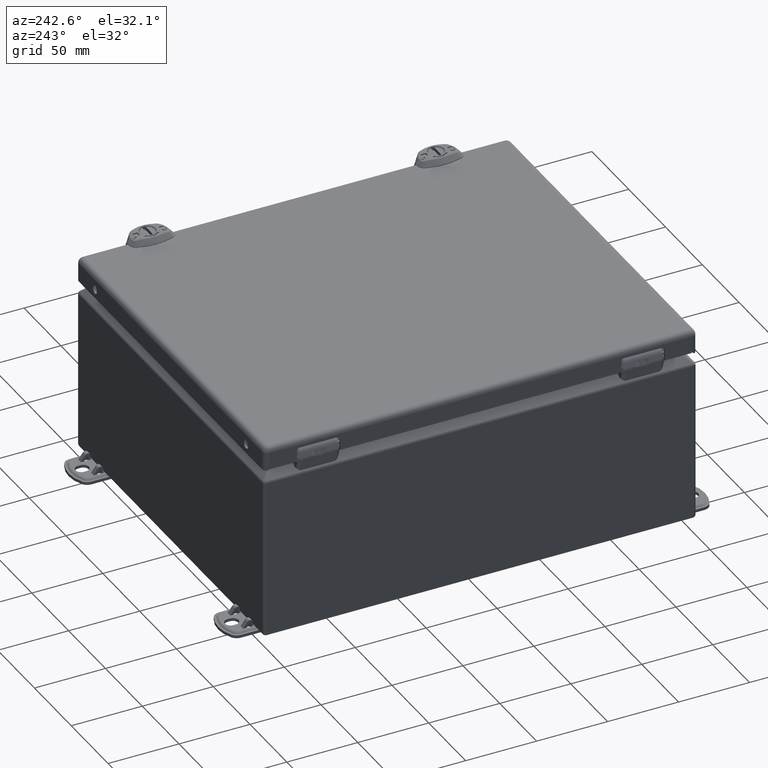
[diagram: clean part render]
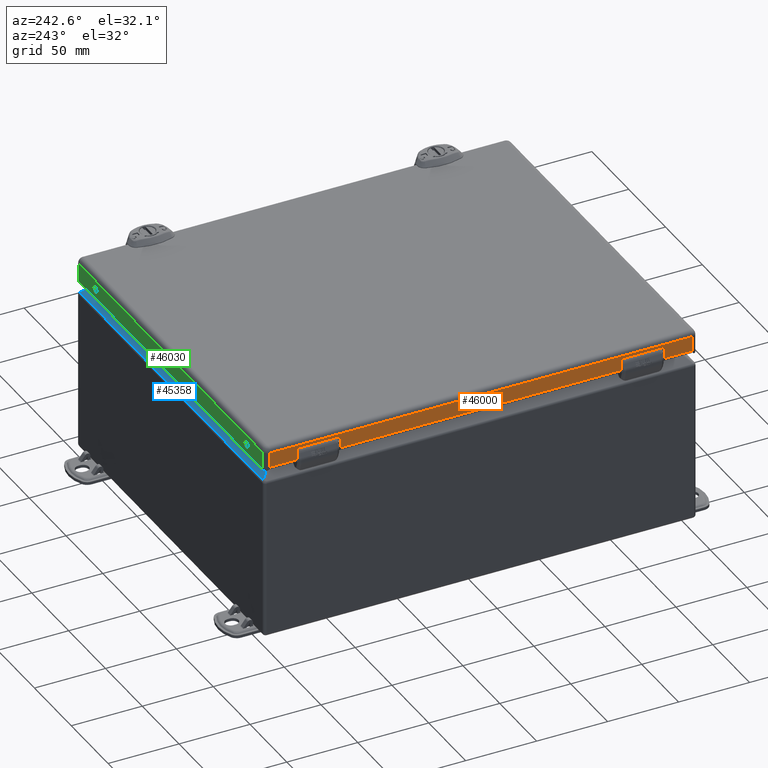
[diagram: same view with three faces highlighted in distinct colors, each labeled with its STEP entity id]
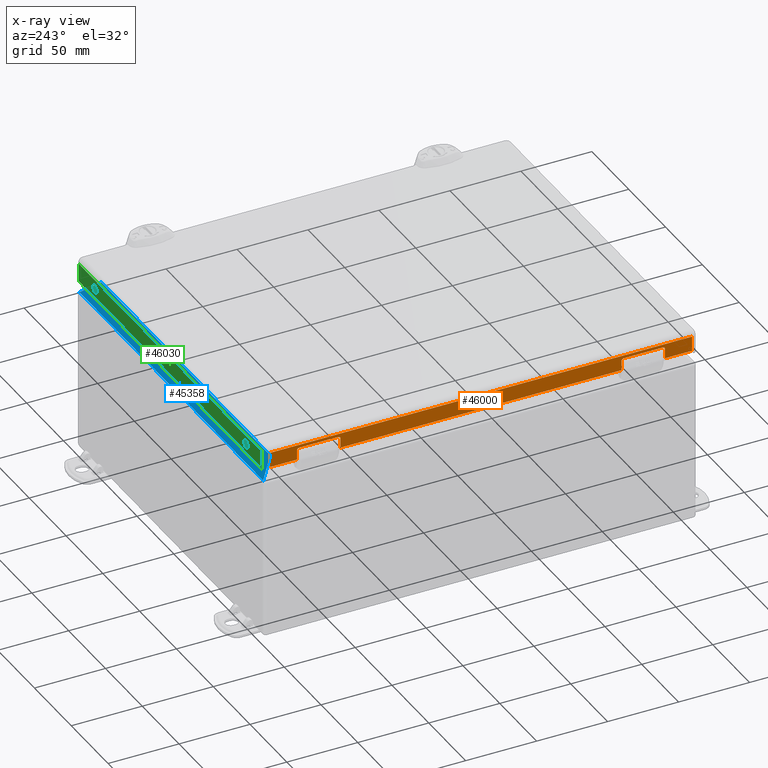
[diagram: x-ray of the same camera — body ghosted, the three highlighted faces saturated]
A machine part, auxiliary view with three faces highlighted in distinct colors.
The next image is the same camera in x-ray (body ghosted, the three faces saturated) — at least one of them is partly hidden behind the body in this view.
Their STEP definitions:

[orange] entity #46000 — the highlighted planar face has unit normal (-1, -0, -0).
#3345=PLANE('',#50018);
#4900=FACE_OUTER_BOUND('',#7737,.T.);
#7737=EDGE_LOOP('',(#34406,#34407,#34408,#34409,#34410,#34411,#34412,#34413,
#34414,#34415,#34416,#34417,#34418,#34419,#34420,#34421));
#10982=LINE('',#75236,#14840);
#10986=LINE('',#75248,#14844);
#10991=LINE('',#75265,#14849);
#11001=LINE('',#75290,#14859);
#11008=LINE('',#75312,#14866);
#11011=LINE('',#75320,#14869);
#11013=LINE('',#75327,#14871);
#11014=LINE('',#75330,#14872);
#11032=LINE('',#75441,#14890);
#11035=LINE('',#75448,#14893);
#11037=LINE('',#75452,#14895);
#11038=LINE('',#75453,#14896);
#14840=VECTOR('',#56506,0.393700787401575);
#14844=VECTOR('',#56518,0.393700787401575);
#14849=VECTOR('',#56533,0.393700787401575);
#14859=VECTOR('',#56551,0.393700787401575);
#14866=VECTOR('',#56576,0.393700787401575);
#14869=VECTOR('',#56585,0.393700787401575);
#14871=VECTOR('',#56593,0.393700787401575);
#14872=VECTOR('',#56596,0.393700787401575);
#14890=VECTOR('',#56648,0.393700787401575);
#14893=VECTOR('',#56657,0.393700787401575);
#14895=VECTOR('',#56661,0.393700787401575);
#14896=VECTOR('',#56662,0.393700787401575);
#18102=CIRCLE('',#49966,0.06);
#18104=CIRCLE('',#49970,0.06);
#18115=CIRCLE('',#49989,0.06);
#18116=CIRCLE('',#49992,0.06);
#20362=VERTEX_POINT('',#75226);
#20363=VERTEX_POINT('',#75227);
#20366=VERTEX_POINT('',#75235);
#20368=VERTEX_POINT('',#75241);
#20370=VERTEX_POINT('',#75247);
#20377=VERTEX_POINT('',#75263);
#20388=VERTEX_POINT('',#75289);
#20392=VERTEX_POINT('',#75305);
#20393=VERTEX_POINT('',#75306);
#20394=VERTEX_POINT('',#75311);
#20395=VERTEX_POINT('',#75315);
#20396=VERTEX_POINT('',#75319);
#20399=VERTEX_POINT('',#75329);
#20419=VERTEX_POINT('',#75439);
#20420=VERTEX_POINT('',#75447);
#20421=VERTEX_POINT('',#75451);
#25424=EDGE_CURVE('',#20362,#20363,#18102,.T.);
#25428=EDGE_CURVE('',#20366,#20363,#10982,.T.);
#25431=EDGE_CURVE('',#20366,#20368,#18104,.T.);
#25434=EDGE_CURVE('',#20370,#20368,#10986,.T.);
#25443=EDGE_CURVE('',#20362,#20377,#10991,.T.);
#25455=EDGE_CURVE('',#20388,#20370,#11001,.T.);
#25463=EDGE_CURVE('',#20392,#20393,#18115,.T.);
#25466=EDGE_CURVE('',#20394,#20393,#11008,.T.);
#25468=EDGE_CURVE('',#20394,#20395,#18116,.T.);
#25470=EDGE_CURVE('',#20396,#20395,#11011,.T.);
#25474=EDGE_CURVE('',#20392,#20388,#11013,.T.);
#25475=EDGE_CURVE('',#20399,#20396,#11014,.T.);
#25504=EDGE_CURVE('',#20377,#20419,#11032,.T.);
#25507=EDGE_CURVE('',#20420,#20399,#11035,.T.);
#25509=EDGE_CURVE('',#20419,#20421,#11037,.T.);
#25510=EDGE_CURVE('',#20420,#20421,#11038,.T.);
#34406=ORIENTED_EDGE('',*,*,#25443,.T.);
#34407=ORIENTED_EDGE('',*,*,#25504,.T.);
#34408=ORIENTED_EDGE('',*,*,#25509,.T.);
#34409=ORIENTED_EDGE('',*,*,#25510,.F.);
#34410=ORIENTED_EDGE('',*,*,#25507,.T.);
#34411=ORIENTED_EDGE('',*,*,#25475,.T.);
#34412=ORIENTED_EDGE('',*,*,#25470,.T.);
#34413=ORIENTED_EDGE('',*,*,#25468,.F.);
#34414=ORIENTED_EDGE('',*,*,#25466,.T.);
#34415=ORIENTED_EDGE('',*,*,#25463,.F.);
#34416=ORIENTED_EDGE('',*,*,#25474,.T.);
#34417=ORIENTED_EDGE('',*,*,#25455,.T.);
#34418=ORIENTED_EDGE('',*,*,#25434,.T.);
#34419=ORIENTED_EDGE('',*,*,#25431,.F.);
#34420=ORIENTED_EDGE('',*,*,#25428,.T.);
#34421=ORIENTED_EDGE('',*,*,#25424,.F.);
#46000=ADVANCED_FACE('',(#4900),#3345,.T.);
#49966=AXIS2_PLACEMENT_3D('',#75228,#56498,#56499);
#49970=AXIS2_PLACEMENT_3D('',#75242,#56511,#56512);
#49989=AXIS2_PLACEMENT_3D('',#75307,#56570,#56571);
#49992=AXIS2_PLACEMENT_3D('',#75316,#56580,#56581);
#50018=AXIS2_PLACEMENT_3D('',#75450,#56659,#56660);
#56498=DIRECTION('center_axis',(-1.,0.,0.));
#56499=DIRECTION('ref_axis',(0.,-0.707106781186548,0.707106781186548));
#56506=DIRECTION('',(0.,-1.,2.3616973511312E-16));
#56511=DIRECTION('center_axis',(-1.,0.,0.));
#56512=DIRECTION('ref_axis',(0.,0.707106781186548,0.707106781186548));
#56518=DIRECTION('',(0.,0.,1.));
#56533=DIRECTION('',(0.,0.,-1.));
#56551=DIRECTION('',(0.,-1.,0.));
#56570=DIRECTION('center_axis',(-1.,0.,0.));
#56571=DIRECTION('ref_axis',(0.,-0.707106781186548,0.707106781186548));
#56576=DIRECTION('',(0.,-1.,2.3616973511312E-16));
#56580=DIRECTION('center_axis',(-1.,0.,0.));
#56581=DIRECTION('ref_axis',(0.,0.707106781186548,0.707106781186548));
#56585=DIRECTION('',(0.,0.,1.));
#56593=DIRECTION('',(0.,0.,-1.));
#56596=DIRECTION('',(0.,-1.,0.));
#56648=DIRECTION('',(0.,-1.,0.));
#56657=DIRECTION('',(0.,0.,-1.));
#56659=DIRECTION('center_axis',(-1.,0.,0.));
#56660=DIRECTION('ref_axis',(0.,-1.,0.));
#56661=DIRECTION('',(0.,0.,1.));
#56662=DIRECTION('',(0.,-1.,0.));
#75226=CARTESIAN_POINT('',(-5.04,-5.1015,-0.237));
#75227=CARTESIAN_POINT('',(-5.04,-5.0415,-0.177));
#75228=CARTESIAN_POINT('Origin',(-5.04,-5.0415,-0.237));
#75235=CARTESIAN_POINT('',(-5.04,-3.9585,-0.177000000000001));
#75236=CARTESIAN_POINT('',(-5.04,0.977750000000001,-0.177000000000002));
#75241=CARTESIAN_POINT('',(-5.04,-3.8985,-0.237000000000001));
#75242=CARTESIAN_POINT('Origin',(-5.04,-3.9585,-0.237000000000001));
#75247=CARTESIAN_POINT('',(-5.04,-3.8985,-0.5055));
#75248=CARTESIAN_POINT('',(-5.04,-3.8985,-0.348500000000001));
#75263=CARTESIAN_POINT('',(-5.04,-5.1015,-0.5055));
#75265=CARTESIAN_POINT('',(-5.04,-5.1015,-0.0885000000000002));
#75289=CARTESIAN_POINT('',(-5.04,3.8985,-0.5055));
#75290=CARTESIAN_POINT('',(-5.04,5.00000000108353E-7,-0.5055));
#75305=CARTESIAN_POINT('',(-5.04,3.8985,-0.237));
#75306=CARTESIAN_POINT('',(-5.04,3.9585,-0.177));
#75307=CARTESIAN_POINT('Origin',(-5.04,3.9585,-0.237));
#75311=CARTESIAN_POINT('',(-5.04,5.0415,-0.177000000000001));
#75312=CARTESIAN_POINT('',(-5.04,5.47775,-0.177000000000001));
#75315=CARTESIAN_POINT('',(-5.04,5.1015,-0.237000000000001));
#75316=CARTESIAN_POINT('Origin',(-5.04,5.0415,-0.237000000000001));
#75319=CARTESIAN_POINT('',(-5.04,5.1015,-0.5055));
#75320=CARTESIAN_POINT('',(-5.04,5.1015,-0.348500000000001));
#75327=CARTESIAN_POINT('',(-5.04,3.8985,-0.0885000000000002));
#75329=CARTESIAN_POINT('',(-5.04,5.853999,-0.5055));
#75330=CARTESIAN_POINT('',(-5.04,5.00000000108353E-7,-0.5055));
#75439=CARTESIAN_POINT('',(-5.04,-5.853999,-0.5055));
#75441=CARTESIAN_POINT('',(-5.04,5.00000000108353E-7,-0.5055));
#75447=CARTESIAN_POINT('',(-5.04,5.853999,-0.0930000000000007));
#75448=CARTESIAN_POINT('',(-5.04,5.853999,-0.0465000000000004));
#75450=CARTESIAN_POINT('Origin',(-5.04,5.854,0.));
#75451=CARTESIAN_POINT('',(-5.04,-5.853999,-0.0929999999999993));
#75452=CARTESIAN_POINT('',(-5.04,-5.853999,-0.3015));
#75453=CARTESIAN_POINT('',(-5.04,2.927,-0.093));

[blue] entity #45358 — the highlighted planar face has unit normal (-0, 0.7071, 0.7071).
#3060=PLANE('',#48888);
#4258=FACE_OUTER_BOUND('',#7051,.T.);
#7051=EDGE_LOOP('',(#31154,#31155,#31156,#31157));
#10056=LINE('',#65665,#13914);
#10063=LINE('',#65784,#13921);
#10066=LINE('',#65945,#13924);
#10067=LINE('',#65946,#13925);
#13914=VECTOR('',#53376,0.393700787401575);
#13921=VECTOR('',#53405,0.393700787401575);
#13924=VECTOR('',#53430,0.393700787401575);
#13925=VECTOR('',#53431,0.393700787401575);
#19404=VERTEX_POINT('',#65659);
#19405=VERTEX_POINT('',#65664);
#19418=VERTEX_POINT('',#65782);
#19427=VERTEX_POINT('',#65944);
#23859=EDGE_CURVE('',#19404,#19405,#10056,.T.);
#23880=EDGE_CURVE('',#19418,#19404,#10063,.T.);
#23897=EDGE_CURVE('',#19427,#19418,#10066,.T.);
#23898=EDGE_CURVE('',#19405,#19427,#10067,.T.);
#31154=ORIENTED_EDGE('',*,*,#23880,.F.);
#31155=ORIENTED_EDGE('',*,*,#23897,.F.);
#31156=ORIENTED_EDGE('',*,*,#23898,.F.);
#31157=ORIENTED_EDGE('',*,*,#23859,.F.);
#45358=ADVANCED_FACE('',(#4258),#3060,.T.);
#48888=AXIS2_PLACEMENT_3D('',#65943,#53428,#53429);
#53376=DIRECTION('',(-0.577350269189625,0.577350269189626,-0.577350269189626));
#53405=DIRECTION('',(-1.,5.9752474437317E-32,-6.3911540132462E-17));
#53428=DIRECTION('center_axis',(-4.519228342374E-17,0.707106781186547,0.707106781186548));
#53429=DIRECTION('ref_axis',(1.,0.,6.39115401324619E-17));
#53430=DIRECTION('',(-0.577350269189626,-0.577350269189626,0.577350269189626));
#53431=DIRECTION('',(1.,-1.16798743743643E-32,6.39115401324619E-17));
#65659=CARTESIAN_POINT('',(-4.51619742548605,5.57559439510586,4.89635459789414));
#65664=CARTESIAN_POINT('',(-4.916,5.97539696961967,4.49655202338033));
#65665=CARTESIAN_POINT('',(-4.13842847132011,5.19782544093992,5.27412355206008));
#65782=CARTESIAN_POINT('',(4.51619742548605,5.57559439510586,4.89635459789414));
#65784=CARTESIAN_POINT('',(8.85372103285792E-16,5.57559439510586,4.89635459789414));
#65943=CARTESIAN_POINT('Origin',(8.96046141921878E-16,5.77227385695581,
4.69967513604418));
#65944=CARTESIAN_POINT('',(4.916,5.97539696961967,4.49655202338033));
#65945=CARTESIAN_POINT('',(3.42579597806775,4.48519294768756,5.98675604531244));
#65946=CARTESIAN_POINT('',(3.82275530778486E-16,5.97539696961967,4.49655202338033));

[green] entity #46030 — the highlighted planar face has unit normal (-0, 1, -0).
#2083=FACE_BOUND('',#7774,.T.);
#2084=FACE_BOUND('',#7775,.T.);
#3355=PLANE('',#50072);
#4930=FACE_OUTER_BOUND('',#7773,.T.);
#7773=EDGE_LOOP('',(#34594,#34595,#34596,#34597));
#7774=EDGE_LOOP('',(#34598));
#7775=EDGE_LOOP('',(#34599));
#11029=LINE('',#75432,#14887);
#11046=LINE('',#75475,#14904);
#11062=LINE('',#75544,#14920);
#11063=LINE('',#75547,#14921);
#14887=VECTOR('',#56637,0.393700787401575);
#14904=VECTOR('',#56690,0.393700787401575);
#14920=VECTOR('',#56788,0.393700787401575);
#14921=VECTOR('',#56793,0.393700787401575);
#18096=CIRCLE('',#49957,0.115);
#18100=CIRCLE('',#49963,0.115);
#20356=VERTEX_POINT('',#75208);
#20360=VERTEX_POINT('',#75220);
#20416=VERTEX_POINT('',#75429);
#20417=VERTEX_POINT('',#75431);
#20425=VERTEX_POINT('',#75473);
#20437=VERTEX_POINT('',#75543);
#25415=EDGE_CURVE('',#20356,#20356,#18096,.T.);
#25421=EDGE_CURVE('',#20360,#20360,#18100,.T.);
#25499=EDGE_CURVE('',#20416,#20417,#11029,.T.);
#25522=EDGE_CURVE('',#20425,#20416,#11046,.T.);
#25557=EDGE_CURVE('',#20417,#20437,#11062,.T.);
#25559=EDGE_CURVE('',#20437,#20425,#11063,.T.);
#34594=ORIENTED_EDGE('',*,*,#25522,.F.);
#34595=ORIENTED_EDGE('',*,*,#25559,.F.);
#34596=ORIENTED_EDGE('',*,*,#25557,.F.);
#34597=ORIENTED_EDGE('',*,*,#25499,.F.);
#34598=ORIENTED_EDGE('',*,*,#25415,.T.);
#34599=ORIENTED_EDGE('',*,*,#25421,.T.);
#46030=ADVANCED_FACE('',(#4930,#2083,#2084),#3355,.T.);
#49957=AXIS2_PLACEMENT_3D('',#75209,#56477,#56478);
#49963=AXIS2_PLACEMENT_3D('',#75221,#56491,#56492);
#50072=AXIS2_PLACEMENT_3D('',#75548,#56794,#56795);
#56477=DIRECTION('center_axis',(0.,-1.,0.));
#56478=DIRECTION('ref_axis',(-1.,0.,0.));
#56491=DIRECTION('center_axis',(0.,-1.,0.));
#56492=DIRECTION('ref_axis',(-1.,0.,0.));
#56637=DIRECTION('',(0.,0.,-1.));
#56690=DIRECTION('',(-1.,0.,0.));
#56788=DIRECTION('',(1.,-2.1435014907378E-16,0.));
#56793=DIRECTION('',(0.,0.,1.));
#56794=DIRECTION('center_axis',(0.,1.,0.));
#56795=DIRECTION('ref_axis',(-1.,0.,0.));
#75208=CARTESIAN_POINT('',(-3.925,6.,-0.353));
#75209=CARTESIAN_POINT('Origin',(-4.04,6.,-0.353));
#75220=CARTESIAN_POINT('',(4.155,6.,-0.353));
#75221=CARTESIAN_POINT('Origin',(4.04,6.,-0.353));
#75429=CARTESIAN_POINT('',(-4.89399999999999,6.,-0.093));
#75431=CARTESIAN_POINT('',(-4.89399999999999,6.,-0.603));
#75432=CARTESIAN_POINT('',(-4.89399999999999,6.,0.));
#75473=CARTESIAN_POINT('',(4.894,6.,-0.093));
#75475=CARTESIAN_POINT('',(2.447,6.,-0.093));
#75543=CARTESIAN_POINT('',(4.894,6.,-0.603));
#75544=CARTESIAN_POINT('',(4.894,6.,-0.603));
#75547=CARTESIAN_POINT('',(4.894,6.,0.));
#75548=CARTESIAN_POINT('Origin',(4.894,6.,0.));